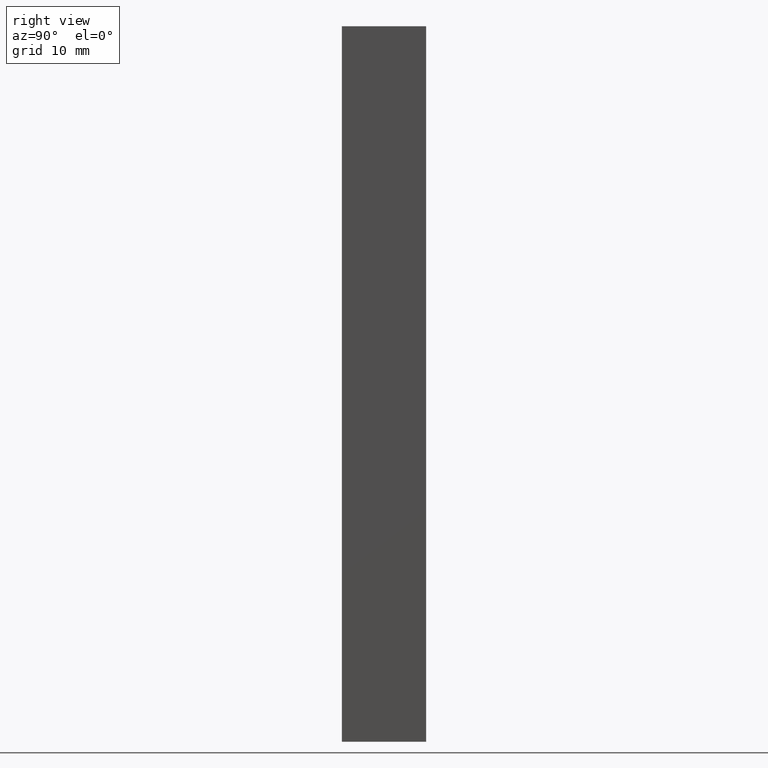
[diagram: clean part render]
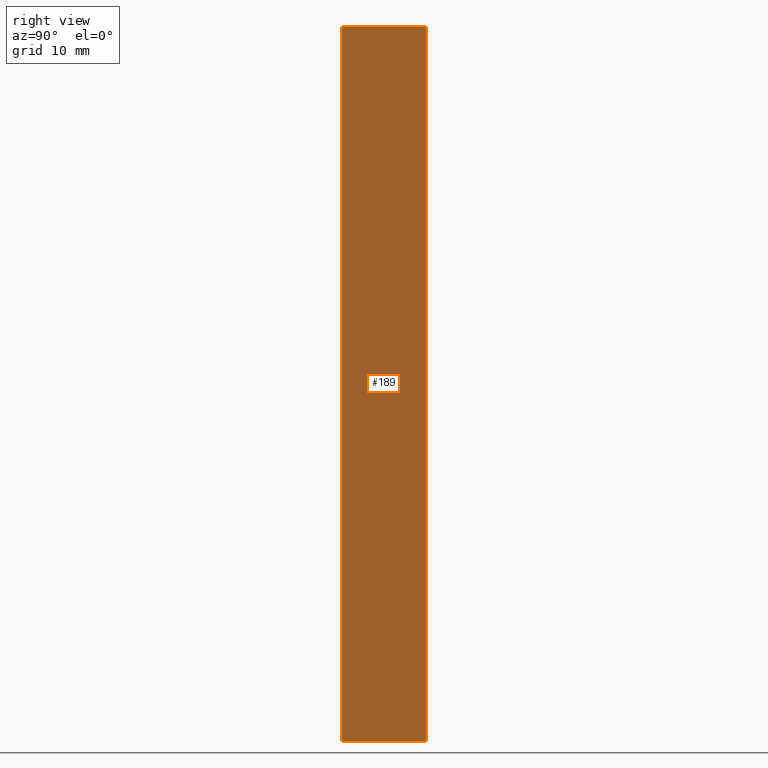
[diagram: same view with one face highlighted and labeled with its STEP entity id]
A machine part, right view. The second image highlights one B-rep face of the part: STEP entity #189.
In plain terms, the highlighted planar face has unit normal (1, 0, 0).
Its self-contained STEP definition (entity closure, byte-faithful):
#23=FACE_OUTER_BOUND('',#33,.T.);
#33=EDGE_LOOP('',(#156,#157,#158,#159));
#36=LINE('',#275,#60);
#56=LINE('',#314,#80);
#57=LINE('',#317,#81);
#58=LINE('',#318,#82);
#60=VECTOR('',#229,10.);
#80=VECTOR('',#261,10.);
#81=VECTOR('',#264,10.);
#82=VECTOR('',#265,10.);
#84=VERTEX_POINT('',#273);
#85=VERTEX_POINT('',#274);
#98=VERTEX_POINT('',#312);
#99=VERTEX_POINT('',#316);
#100=EDGE_CURVE('',#84,#85,#36,.T.);
#120=EDGE_CURVE('',#85,#98,#56,.T.);
#121=EDGE_CURVE('',#98,#99,#57,.T.);
#122=EDGE_CURVE('',#84,#99,#58,.T.);
#156=ORIENTED_EDGE('',*,*,#121,.T.);
#157=ORIENTED_EDGE('',*,*,#122,.F.);
#158=ORIENTED_EDGE('',*,*,#100,.T.);
#159=ORIENTED_EDGE('',*,*,#120,.T.);
#179=PLANE('',#222);
#189=ADVANCED_FACE('',(#23),#179,.T.);
#222=AXIS2_PLACEMENT_3D('',#315,#262,#263);
#229=DIRECTION('',(0.,1.,0.));
#261=DIRECTION('',(0.,0.,1.));
#262=DIRECTION('center_axis',(1.,0.,0.));
#263=DIRECTION('ref_axis',(0.,0.,-1.));
#264=DIRECTION('',(0.,-1.,0.));
#265=DIRECTION('',(0.,0.,1.));
#273=CARTESIAN_POINT('',(7.5,-5.,-42.5));
#274=CARTESIAN_POINT('',(7.5,5.,-42.5));
#275=CARTESIAN_POINT('',(7.5,-5.,-42.5));
#312=CARTESIAN_POINT('',(7.5,5.,42.5));
#314=CARTESIAN_POINT('',(7.5,5.,0.));
#315=CARTESIAN_POINT('Origin',(7.5,5.,0.));
#316=CARTESIAN_POINT('',(7.5,-5.,42.5));
#317=CARTESIAN_POINT('',(7.5,-5.,42.5));
#318=CARTESIAN_POINT('',(7.5,-5.,0.));